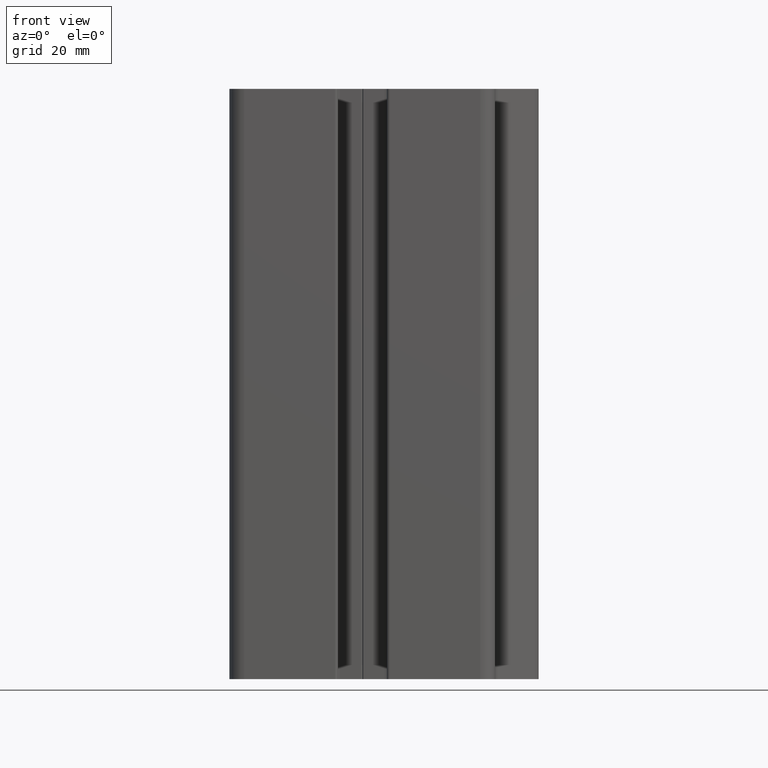
[diagram: clean part render]
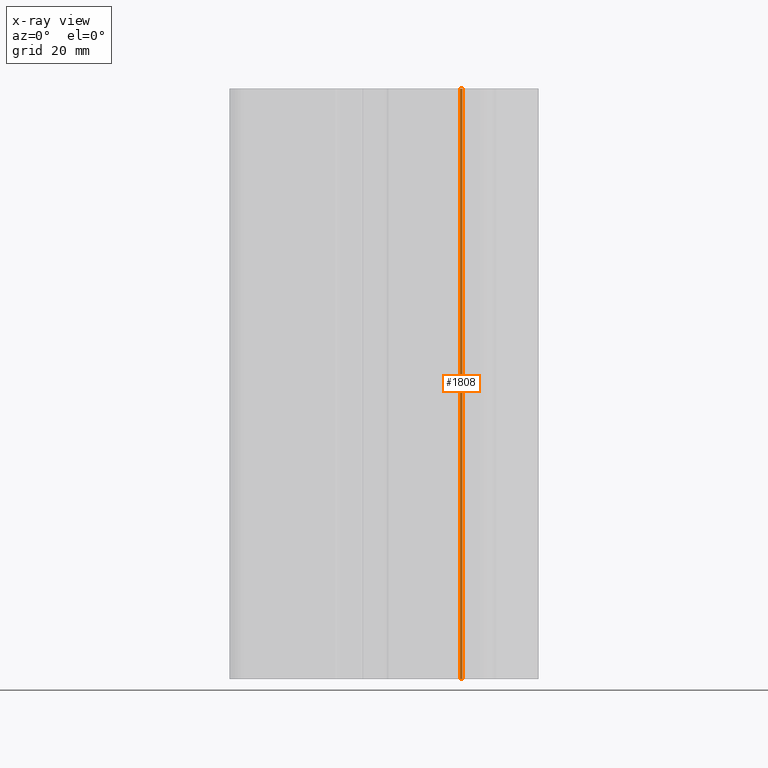
[diagram: x-ray — body ghosted, one internal face saturated and labeled with its STEP entity id]
A machine part, front view, then the same camera in x-ray: the body is ghosted and one INTERNAL B-rep face — a face not visible from any outside direction — is saturated and labeled: STEP entity #1808.
In plain terms, the highlighted cylindrical surface (edge-blend (fillet) strip) has radius 0.25 mm, axis along (0, 0, 1).
Its self-contained STEP definition (entity closure, byte-faithful):
#48=CIRCLE('',#1927,0.25);
#49=CIRCLE('',#1928,0.25);
#129=CYLINDRICAL_SURFACE('',#1926,0.25);
#186=FACE_OUTER_BOUND('',#280,.T.);
#280=EDGE_LOOP('',(#1276,#1277,#1278,#1279));
#410=LINE('',#2771,#593);
#412=LINE('',#2777,#595);
#593=VECTOR('',#2205,100.);
#595=VECTOR('',#2211,100.);
#781=VERTEX_POINT('',#2768);
#782=VERTEX_POINT('',#2770);
#783=VERTEX_POINT('',#2774);
#784=VERTEX_POINT('',#2776);
#982=EDGE_CURVE('',#781,#782,#410,.T.);
#984=EDGE_CURVE('',#781,#783,#48,.T.);
#985=EDGE_CURVE('',#783,#784,#412,.T.);
#986=EDGE_CURVE('',#782,#784,#49,.T.);
#1276=ORIENTED_EDGE('',*,*,#984,.T.);
#1277=ORIENTED_EDGE('',*,*,#985,.T.);
#1278=ORIENTED_EDGE('',*,*,#986,.F.);
#1279=ORIENTED_EDGE('',*,*,#982,.F.);
#1808=ADVANCED_FACE('',(#186),#129,.F.);
#1926=AXIS2_PLACEMENT_3D('',#2773,#2207,#2208);
#1927=AXIS2_PLACEMENT_3D('',#2775,#2209,#2210);
#1928=AXIS2_PLACEMENT_3D('',#2778,#2212,#2213);
#2205=DIRECTION('',(0.,0.,-1.));
#2207=DIRECTION('center_axis',(0.,0.,1.));
#2208=DIRECTION('ref_axis',(0.707106781186548,-0.707106781186548,0.));
#2209=DIRECTION('center_axis',(0.,0.,1.));
#2210=DIRECTION('ref_axis',(0.707106781186548,-0.707106781186548,0.));
#2211=DIRECTION('',(0.,0.,-1.));
#2212=DIRECTION('center_axis',(0.,0.,1.));
#2213=DIRECTION('ref_axis',(0.707106781186548,-0.707106781186548,0.));
#2768=CARTESIAN_POINT('',(16.9210652737941,7.02157033718241,100.));
#2770=CARTESIAN_POINT('',(16.9210652737941,7.02157033718241,0.));
#2771=CARTESIAN_POINT('',(16.9210652737941,7.02157033718241,0.));
#2773=CARTESIAN_POINT('Origin',(16.7442885784975,7.19834703247905,0.));
#2774=CARTESIAN_POINT('',(16.5675118832008,7.37512372777568,100.));
#2775=CARTESIAN_POINT('Origin',(16.7442885784975,7.19834703247905,100.));
#2776=CARTESIAN_POINT('',(16.5675118832008,7.37512372777568,0.));
#2777=CARTESIAN_POINT('',(16.5675118832008,7.37512372777568,0.));
#2778=CARTESIAN_POINT('Origin',(16.7442885784975,7.19834703247905,0.));